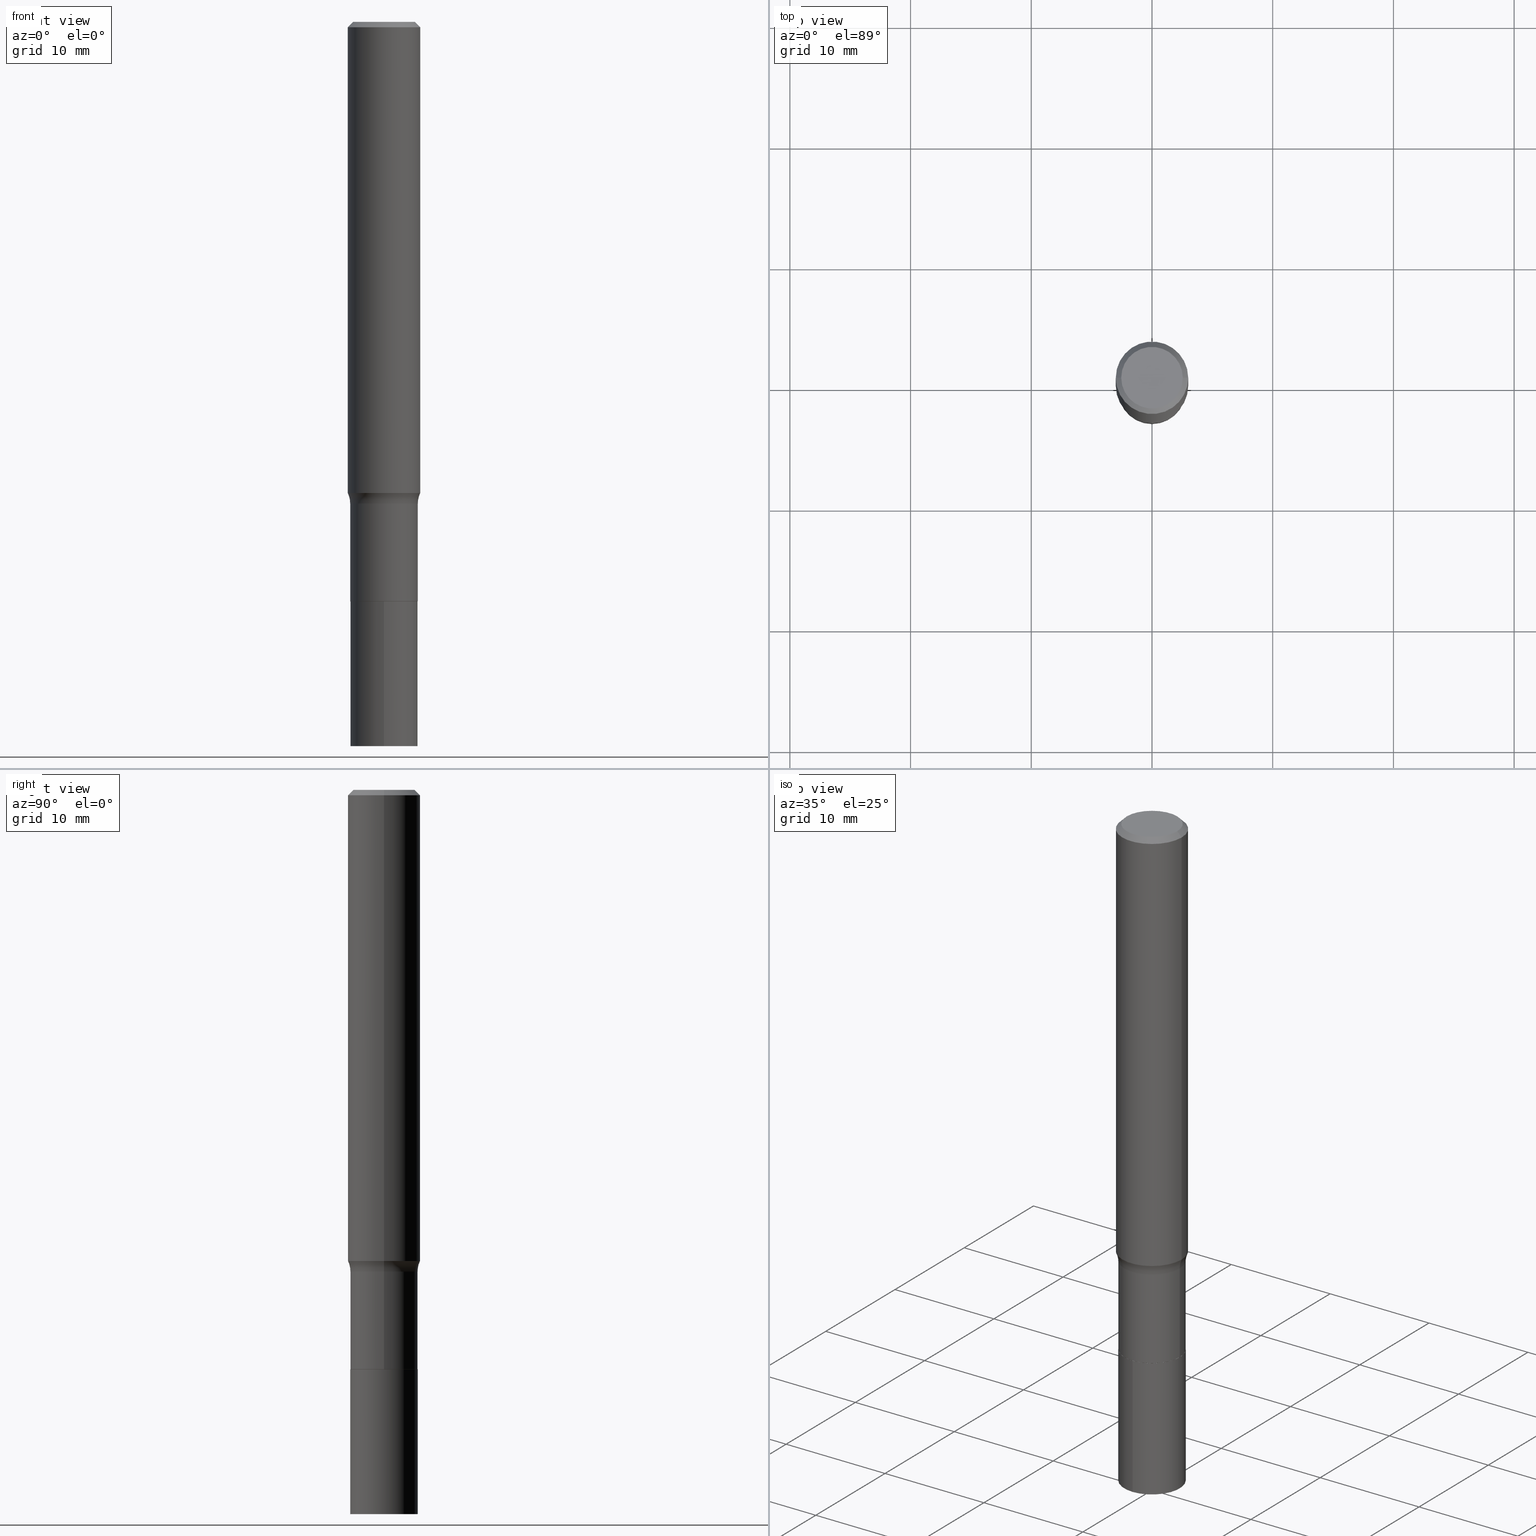
[diagram: canonical four-view strip — front | top / right | iso, engineering-drawing reading convention]
A machine part, canonical four-view strip (front | top / right | iso — engineering-drawing reading convention). The complete STEP part file that produces these views, byte-faithful:
ISO-10303-21;
HEADER;
FILE_DESCRIPTION (( 'STEP AP203' ),
    '1' );
FILE_NAME ('67101.STEP',
    '2024-04-19T15:52:13',
    ( '' ),
    ( '' ),
    'SwSTEP 2.0',
    'SolidWorks 2023',
    '' );
FILE_SCHEMA (( 'CONFIG_CONTROL_DESIGN' ));
ENDSEC;

DATA;
#1 = DIRECTION ( 'NONE',  ( -2.445468806185136877E-29, 3.491481338843145188E-15, 1.000000000000000000 ) ) ;
#2 = CARTESIAN_POINT ( 'NONE',  ( 4.621202403048053204E-29, -6.597852286011893278E-15, -1.889700000000000379 ) ) ;
#3 = DIRECTION ( 'NONE',  ( -1.000000000000000000, 6.982962677686266711E-15, 0.000000000000000000 ) ) ;
#4 = DIRECTION ( 'NONE',  ( 1.000000000000000000, -6.982962677686266711E-15, 4.875668750515089058E-29 ) ) ;
#5 = AXIS2_PLACEMENT_3D ( 'NONE', #174, #314, #34 ) ;
#6 = APPLICATION_PROTOCOL_DEFINITION ( 'international standard', 'config_control_design', 1994, #45 ) ;
#7 = EDGE_CURVE ( 'NONE', #340, #61, #364, .T. ) ;
#8 = DIRECTION ( 'NONE',  ( 1.000000000000000000, -6.982962677686268288E-15, 4.883557194083113462E-29 ) ) ;
#9 = EDGE_CURVE ( 'NONE', #276, #372, #254, .T. ) ;
#10 = FACE_OUTER_BOUND ( 'NONE', #199, .T. ) ;
#11 = LINE ( 'NONE', #342, #268 ) ;
#12 = EDGE_CURVE ( 'NONE', #399, #71, #354, .T. ) ;
#13 = ORIENTED_EDGE ( 'NONE', *, *, #244, .F. ) ;
#14 = DIRECTION ( 'NONE',  ( 2.478945423530015268E-29, -3.443540917434547988E-15, -1.000000000000000000 ) ) ;
#15 = EDGE_LOOP ( 'NONE', ( #278, #356, #25, #245 ) ) ;
#16 = DATE_AND_TIME ( #316, #86 ) ;
#17 = CARTESIAN_POINT ( 'NONE',  ( 3.842076041397468418E-29, -5.485466331456466239E-15, -1.571100000000000163 ) ) ;
#18 = ORIENTED_EDGE ( 'NONE', *, *, #456, .F. ) ;
#19 = APPROVAL ( #62, 'UNSPECIFIED' ) ;
#20 = DIRECTION ( 'NONE',  ( -2.445468806185136597E-29, 3.491481338843145583E-15, 1.000000000000000000 ) ) ;
#21 = VERTEX_POINT ( 'NONE', #112 ) ;
#22 = APPROVAL_DATE_TIME ( #103, #19 ) ;
#23 = AXIS2_PLACEMENT_3D ( 'NONE', #51, #160, #416 ) ;
#24 = ADVANCED_FACE ( 'NONE', ( #143 ), #154, .T. ) ;
#25 = ORIENTED_EDGE ( 'NONE', *, *, #456, .T. ) ;
#26 = COORDINATED_UNIVERSAL_TIME_OFFSET ( 5, 0, .BEHIND. ) ;
#27 = ORIENTED_EDGE ( 'NONE', *, *, #63, .F. ) ;
#28 = APPLICATION_PROTOCOL_DEFINITION ( 'international standard', 'config_control_design', 1994, #459 ) ;
#29 = ORIENTED_EDGE ( 'NONE', *, *, #401, .F. ) ;
#30 = AXIS2_PLACEMENT_3D ( 'NONE', #178, #465, #368 ) ;
#31 = DIRECTION ( 'NONE',  ( -2.445468806185136597E-29, 3.491481338843145583E-15, 1.000000000000000000 ) ) ;
#32 = CC_DESIGN_PERSON_AND_ORGANIZATION_ASSIGNMENT ( #243, #138, ( #223 ) ) ;
#33 = DIRECTION ( 'NONE',  ( -6.982962677686266711E-15, -1.000000000000000000, 2.477866660919966807E-15 ) ) ;
#34 = DIRECTION ( 'NONE',  ( 1.000000000000000000, -6.982962677686264344E-15, 0.000000000000000000 ) ) ;
#35 = APPROVAL_PERSON_ORGANIZATION ( #415, #83, #240 ) ;
#36 = DIRECTION ( 'NONE',  ( -2.445468806185136597E-29, 3.491481338843145583E-15, 1.000000000000000000 ) ) ;
#37 = AXIS2_PLACEMENT_3D ( 'NONE', #17, #97, #269 ) ;
#38 = CARTESIAN_POINT ( 'NONE',  ( 3.757561209076375326E-29, -5.364801549653391521E-15, -1.536540232929025418 ) ) ;
#39 = CARTESIAN_POINT ( 'NONE',  ( -0.1181000000000001909, -4.525650578720712535E-15, -1.536540232929025418 ) ) ;
#40 = CARTESIAN_POINT ( 'NONE',  ( 4.622425137451146006E-29, -6.599598026681314782E-15, -1.890200000000000324 ) ) ;
#41 = ADVANCED_FACE ( 'NONE', ( #179 ), #360, .T. ) ;
#42 = DIRECTION ( 'NONE',  ( 0.7071067811866078578, -2.468850131082888544E-15, 0.7071067811864871766 ) ) ;
#43 = CYLINDRICAL_SURFACE ( 'NONE', #218, 0.1181000000000001077 ) ;
#44 = VECTOR ( 'NONE', #128, 39.37007874015748143 ) ;
#45 = APPLICATION_CONTEXT ( 'configuration controlled 3d designs of mechanical parts and assemblies' ) ;
#46 = AXIS2_PLACEMENT_3D ( 'NONE', #365, #293, #4 ) ;
#47 = CC_DESIGN_PERSON_AND_ORGANIZATION_ASSIGNMENT ( #200, #282, ( #197 ) ) ;
#48 = LINE ( 'NONE', #231, #44 ) ;
#49 = DIRECTION ( 'NONE',  ( -2.445468806185136597E-29, 3.491481338843145583E-15, 1.000000000000000000 ) ) ;
#50 = DIRECTION ( 'NONE',  ( 0.7071067811865469066, -7.319954787623254468E-15, -0.7071067811865481278 ) ) ;
#51 = CARTESIAN_POINT ( 'NONE',  ( 4.332147990156997620E-31, -6.185159191760672860E-17, -0.01771500000000011607 ) ) ;
#52 = ADVANCED_FACE ( 'NONE', ( #104 ), #140, .T. ) ;
#53 = EDGE_LOOP ( 'NONE', ( #273, #343, #172, #232 ) ) ;
#54 = LOCAL_TIME ( 11, 52, 13.00000000000000000, #70 ) ;
#55 = CALENDAR_DATE ( 2024, 19, 4 ) ;
#56 = VECTOR ( 'NONE', #1, 39.37007874015748143 ) ;
#57 = DIRECTION ( 'NONE',  ( -2.478945423530014988E-29, 3.443540917434548382E-15, 1.000000000000000000 ) ) ;
#58 = ORIENTED_EDGE ( 'NONE', *, *, #244, .T. ) ;
#59 = COORDINATED_UNIVERSAL_TIME_OFFSET ( 5, 0, .BEHIND. ) ;
#60 = CARTESIAN_POINT ( 'NONE',  ( 0.1181000000000001909, -6.189489441888142939E-15, -1.536540232929025418 ) ) ;
#61 = VERTEX_POINT ( 'NONE', #284 ) ;
#62 = APPROVAL_STATUS ( 'not_yet_approved' ) ;
#63 = EDGE_CURVE ( 'NONE', #417, #168, #468, .T. ) ;
#64 = PLANE ( 'NONE',  #290 ) ;
#65 = ORIENTED_EDGE ( 'NONE', *, *, #115, .T. ) ;
#66 = SHAPE_DEFINITION_REPRESENTATION ( #344, #108 ) ;
#67 = AXIS2_PLACEMENT_3D ( 'NONE', #327, #227, #3 ) ;
#68 = ADVANCED_FACE ( 'NONE', ( #426 ), #87, .T. ) ;
#69 = ORIENTED_EDGE ( 'NONE', *, *, #124, .T. ) ;
#70 = COORDINATED_UNIVERSAL_TIME_OFFSET ( 5, 0, .BEHIND. ) ;
#71 = VERTEX_POINT ( 'NONE', #321 ) ;
#72 = ADVANCED_FACE ( 'NONE', ( #464 ), #109, .F. ) ;
#73 = DIRECTION ( 'NONE',  ( -6.982962677686266711E-15, -1.000000000000000000, 2.477866660919966807E-15 ) ) ;
#74 = CIRCLE ( 'NONE', #412, 0.1003849999999999465 ) ;
#75 = AXIS2_PLACEMENT_3D ( 'NONE', #81, #258, #261 ) ;
#76 = EDGE_LOOP ( 'NONE', ( #170, #381, #206, #387 ) ) ;
#77 = ORIENTED_EDGE ( 'NONE', *, *, #211, .F. ) ;
#78 = FACE_OUTER_BOUND ( 'NONE', #303, .T. ) ;
#79 = CC_DESIGN_SECURITY_CLASSIFICATION ( #142, ( #197 ) ) ;
#80 = CARTESIAN_POINT ( 'NONE',  ( 0.1003849999999999465, -7.803837484803597373E-16, -3.278471329826883745E-17 ) ) ;
#81 = CARTESIAN_POINT ( 'NONE',  ( 4.332147990156997620E-31, -6.185159191760672860E-17, -0.01771500000000011607 ) ) ;
#82 = DIRECTION ( 'NONE',  ( -2.445468806185136597E-29, 3.491481338843145583E-15, 1.000000000000000000 ) ) ;
#83 = APPROVAL ( #204, 'UNSPECIFIED' ) ;
#84 = LINE ( 'NONE', #274, #289 ) ;
#85 = CARTESIAN_POINT ( 'NONE',  ( 0.000000000000000000, 0.000000000000000000, 0.000000000000000000 ) ) ;
#86 = LOCAL_TIME ( 11, 52, 13.00000000000000000, #311 ) ;
#87 = CONICAL_SURFACE ( 'NONE', #123, 0.1097500000000000003, 0.7853981633975336552 ) ;
#88 = CARTESIAN_POINT ( 'NONE',  ( 3.757561209076375326E-29, -5.364801549653391521E-15, -1.536540232929025418 ) ) ;
#89 = ORIENTED_EDGE ( 'NONE', *, *, #177, .T. ) ;
#90 = EDGE_CURVE ( 'NONE', #346, #396, #359, .T. ) ;
#91 = LINE ( 'NONE', #451, #248 ) ;
#92 = ORIENTED_EDGE ( 'NONE', *, *, #9, .T. ) ;
#93 = CARTESIAN_POINT ( 'NONE',  ( 7.833733661755681459E-16, 0.1102499999999933950, -1.890200000000000546 ) ) ;
#94 = EDGE_LOOP ( 'NONE', ( #13, #102 ) ) ;
#95 = DIRECTION ( 'NONE',  ( 1.000000000000000000, 0.000000000000000000, 0.000000000000000000 ) ) ;
#96 = CLOSED_SHELL ( 'NONE', ( #41, #285, #371, #334 ) ) ;
#97 = DIRECTION ( 'NONE',  ( -2.445468806185136597E-29, 3.491481338843145583E-15, 1.000000000000000000 ) ) ;
#98 = ADVANCED_FACE ( 'NONE', ( #406 ), #43, .T. ) ;
#99 = ORIENTED_EDGE ( 'NONE', *, *, #257, .T. ) ;
#100 = PERSON_AND_ORGANIZATION ( #410, #259 ) ;
#101 = FACE_OUTER_BOUND ( 'NONE', #407, .T. ) ;
#102 = ORIENTED_EDGE ( 'NONE', *, *, #149, .F. ) ;
#103 = DATE_AND_TIME ( #347, #146 ) ;
#104 = FACE_OUTER_BOUND ( 'NONE', #145, .T. ) ;
#105 = AXIS2_PLACEMENT_3D ( 'NONE', #38, #226, #297 ) ;
#106 = DIRECTION ( 'NONE',  ( -2.478945423530014988E-29, 3.443540917434548382E-15, 1.000000000000000000 ) ) ;
#107 = ORIENTED_EDGE ( 'NONE', *, *, #305, .T. ) ;
#108 = ADVANCED_BREP_SHAPE_REPRESENTATION ( '67101', ( #448, #454, #395 ), #116 ) ;
#109 = PLANE ( 'NONE',  #30 ) ;
#110 = AXIS2_PLACEMENT_3D ( 'NONE', #366, #147, #221 ) ;
#111 = VECTOR ( 'NONE', #429, 39.37007874015748143 ) ;
#112 = CARTESIAN_POINT ( 'NONE',  ( 0.1097500000000000003, -7.365978180557383248E-15, -1.890200000000000324 ) ) ;
#113 = DIRECTION ( 'NONE',  ( 1.000000000000000000, -6.982962677686266711E-15, 4.876176775795935793E-29 ) ) ;
#114 = DIRECTION ( 'NONE',  ( 1.000000000000000000, -6.982962677686269866E-15, 0.000000000000000000 ) ) ;
#115 = EDGE_CURVE ( 'NONE', #372, #276, #452, .T. ) ;
#116 =( GEOMETRIC_REPRESENTATION_CONTEXT ( 3 ) GLOBAL_UNCERTAINTY_ASSIGNED_CONTEXT ( ( #151 ) ) GLOBAL_UNIT_ASSIGNED_CONTEXT ( ( #331, #435, #263 ) ) REPRESENTATION_CONTEXT ( 'NONE', 'WORKASPACE' ) );
#117 = CARTESIAN_POINT ( 'NONE',  ( 0.000000000000000000, 0.000000000000000000, 0.000000000000000000 ) ) ;
#118 = TOROIDAL_SURFACE ( 'NONE', #37, 0.1902499999999999747, 0.08000000000000000167 ) ;
#119 = APPROVAL ( #280, 'UNSPECIFIED' ) ;
#120 = CARTESIAN_POINT ( 'NONE',  ( 0.1902499999999999747, -6.813974980886278576E-15, -1.571100000000000163 ) ) ;
#121 = DIRECTION ( 'NONE',  ( 1.000000000000000000, -6.982962677686265922E-15, 4.876176775795935793E-29 ) ) ;
#122 = LINE ( 'NONE', #333, #349 ) ;
#123 = AXIS2_PLACEMENT_3D ( 'NONE', #358, #31, #320 ) ;
#124 = EDGE_CURVE ( 'NONE', #377, #442, #148, .T. ) ;
#125 = DIRECTION ( 'NONE',  ( 1.000000000000000000, -6.982962677686261977E-15, 0.000000000000000000 ) ) ;
#126 = CARTESIAN_POINT ( 'NONE',  ( 1.689407089296579624E-29, -1.410079384504042696E-14, -2.362200000000000077 ) ) ;
#127 = ORIENTED_EDGE ( 'NONE', *, *, #185, .F. ) ;
#128 = DIRECTION ( 'NONE',  ( -2.445468806185136877E-29, 3.491481338843145188E-15, 1.000000000000000000 ) ) ;
#129 = CARTESIAN_POINT ( 'NONE',  ( -0.1102499999999999869, -5.258285942558669989E-15, -1.889700000000000379 ) ) ;
#130 = ORIENTED_EDGE ( 'NONE', *, *, #266, .T. ) ;
#131 = ADVANCED_FACE ( 'NONE', ( #229 ), #265, .F. ) ;
#132 = CARTESIAN_POINT ( 'NONE',  ( 4.622425137451146006E-29, -6.599598026681314782E-15, -1.890200000000000324 ) ) ;
#133 = ORIENTED_EDGE ( 'NONE', *, *, #374, .T. ) ;
#134 = PERSON_AND_ORGANIZATION_ROLE ( 'classification_officer' ) ;
#135 = AXIS2_PLACEMENT_3D ( 'NONE', #328, #256, #121 ) ;
#136 = CARTESIAN_POINT ( 'NONE',  ( -0.1097500000000000003, -5.817128147010494315E-15, -1.890200000000000324 ) ) ;
#137 = ORIENTED_EDGE ( 'NONE', *, *, #447, .F. ) ;
#138 = PERSON_AND_ORGANIZATION_ROLE ( 'creator' ) ;
#139 = EDGE_LOOP ( 'NONE', ( #99, #130, #194, #249 ) ) ;
#140 = CYLINDRICAL_SURFACE ( 'NONE', #210, 0.1102499999999999730 ) ;
#141 = APPROVAL_ROLE ( '' ) ;
#142 = SECURITY_CLASSIFICATION ( '', '', #382 ) ;
#143 = FACE_OUTER_BOUND ( 'NONE', #15, .T. ) ;
#144 = EDGE_LOOP ( 'NONE', ( #235, #133, #237, #77 ) ) ;
#145 = EDGE_LOOP ( 'NONE', ( #89, #214, #391, #137 ) ) ;
#146 = LOCAL_TIME ( 11, 52, 13.00000000000000000, #59 ) ;
#147 = DIRECTION ( 'NONE',  ( -2.445468806185136597E-29, 3.491481338843145583E-15, 1.000000000000000000 ) ) ;
#148 = LINE ( 'NONE', #190, #338 ) ;
#149 = EDGE_CURVE ( 'NONE', #300, #21, #390, .T. ) ;
#150 = DIRECTION ( 'NONE',  ( -6.982962677686266711E-15, -1.000000000000000000, 2.477866660919966807E-15 ) ) ;
#151 = UNCERTAINTY_MEASURE_WITH_UNIT (LENGTH_MEASURE( 1.000000000000000082E-05 ), #331, 'distance_accuracy_value', 'NONE');
#152 =( LENGTH_UNIT ( ) NAMED_UNIT ( * ) SI_UNIT ( $, .METRE. ) );
#153 = DIRECTION ( 'NONE',  ( -2.445468806185136597E-29, 3.491481338843145583E-15, 1.000000000000000000 ) ) ;
#154 = CONICAL_SURFACE ( 'NONE', #5, 0.1097500000000000003, 0.7853981633975336552 ) ;
#155 = CARTESIAN_POINT ( 'NONE',  ( 3.842076041397468418E-29, -5.485466331456466239E-15, -1.571100000000000163 ) ) ;
#156 = DIRECTION ( 'NONE',  ( -2.445468806185136597E-29, 3.491481338843145583E-15, 1.000000000000000000 ) ) ;
#157 = DIRECTION ( 'NONE',  ( 7.105427357601001859E-15, 1.000000000000000000, -3.491481338843145583E-15 ) ) ;
#158 = ADVANCED_FACE ( 'NONE', ( #438 ), #319, .F. ) ;
#159 = DIRECTION ( 'NONE',  ( -0.7071067811866078578, 7.493145998870571886E-15, 0.7071067811864871766 ) ) ;
#160 = DIRECTION ( 'NONE',  ( -2.445468806185136597E-29, 3.491481338843145583E-15, 1.000000000000000000 ) ) ;
#161 = AXIS2_PLACEMENT_3D ( 'NONE', #132, #241, #275 ) ;
#162 = ORIENTED_EDGE ( 'NONE', *, *, #380, .T. ) ;
#163 = PLANE ( 'NONE',  #169 ) ;
#164 = ORIENTED_EDGE ( 'NONE', *, *, #115, .F. ) ;
#165 = DIRECTION ( 'NONE',  ( -2.478945423530014988E-29, 3.443540917434547988E-15, 1.000000000000000000 ) ) ;
#166 = ORIENTED_EDGE ( 'NONE', *, *, #7, .F. ) ;
#167 = CARTESIAN_POINT ( 'NONE',  ( 7.833733661755623280E-16, 0.1102499999999917574, -2.362200000000000966 ) ) ;
#168 = VERTEX_POINT ( 'NONE', #370 ) ;
#169 = AXIS2_PLACEMENT_3D ( 'NONE', #126, #234, #281 ) ;
#170 = ORIENTED_EDGE ( 'NONE', *, *, #183, .F. ) ;
#171 = APPROVAL_DATE_TIME ( #313, #83 ) ;
#172 = ORIENTED_EDGE ( 'NONE', *, *, #233, .T. ) ;
#173 = PERSON_AND_ORGANIZATION ( #410, #259 ) ;
#174 = CARTESIAN_POINT ( 'NONE',  ( 4.622425137451146006E-29, -6.599598026681314782E-15, -1.890200000000000324 ) ) ;
#175 = VECTOR ( 'NONE', #296, 39.37007874015748143 ) ;
#176 = VERTEX_POINT ( 'NONE', #80 ) ;
#177 = EDGE_CURVE ( 'NONE', #396, #346, #398, .T. ) ;
#178 = CARTESIAN_POINT ( 'NONE',  ( 4.008699684532606202E-46, -5.723360734012321624E-32, -1.639235664913700718E-17 ) ) ;
#179 = FACE_OUTER_BOUND ( 'NONE', #361, .T. ) ;
#180 = CIRCLE ( 'NONE', #222, 0.08000000000000000167 ) ;
#181 = CIRCLE ( 'NONE', #46, 0.1003849999999999465 ) ;
#182 = DIRECTION ( 'NONE',  ( 1.000000000000000000, -6.982962677686271444E-15, 0.000000000000000000 ) ) ;
#183 = EDGE_CURVE ( 'NONE', #176, #377, #181, .T. ) ;
#184 = DIRECTION ( 'NONE',  ( 1.000000000000000000, -6.982962677686264344E-15, 0.000000000000000000 ) ) ;
#185 = EDGE_CURVE ( 'NONE', #417, #372, #192, .T. ) ;
#186 = FACE_OUTER_BOUND ( 'NONE', #286, .T. ) ;
#187 = DIRECTION ( 'NONE',  ( -0.7071067811865469066, 2.468850131082250355E-15, -0.7071067811865481278 ) ) ;
#188 = PRODUCT ( '67101', '67101', '', ( #341 ) ) ;
#189 = LOCAL_TIME ( 11, 52, 13.00000000000000000, #352 ) ;
#190 = CARTESIAN_POINT ( 'NONE',  ( -0.1180999999999999966, 7.628363003171413738E-16, -0.01771500000000011607 ) ) ;
#191 = AXIS2_PLACEMENT_3D ( 'NONE', #120, #225, #182 ) ;
#192 = LINE ( 'NONE', #400, #175 ) ;
#193 = DIRECTION ( 'NONE',  ( 1.000000000000000000, -6.982962677686266711E-15, 4.875668750515089058E-29 ) ) ;
#194 = ORIENTED_EDGE ( 'NONE', *, *, #315, .F. ) ;
#195 = DIRECTION ( 'NONE',  ( 2.445468806185136597E-29, -3.491481338843145583E-15, -1.000000000000000000 ) ) ;
#196 = CARTESIAN_POINT ( 'NONE',  ( 4.622425137451146006E-29, -6.599598026681314782E-15, -1.890200000000000324 ) ) ;
#197 = PRODUCT_DEFINITION_FORMATION_WITH_SPECIFIED_SOURCE ( 'ANY', '', #188, .NOT_KNOWN. ) ;
#198 = ADVANCED_FACE ( 'NONE', ( #467 ), #224, .T. ) ;
#199 = EDGE_LOOP ( 'NONE', ( #127, #312, #162, #164 ) ) ;
#200 = PERSON_AND_ORGANIZATION ( #410, #259 ) ;
#201 = DIRECTION ( 'NONE',  ( 1.000000000000000000, -6.982962677686269077E-15, 0.000000000000000000 ) ) ;
#202 = EDGE_LOOP ( 'NONE', ( #242, #27 ) ) ;
#203 = CC_DESIGN_PERSON_AND_ORGANIZATION_ASSIGNMENT ( #450, #455, ( #188 ) ) ;
#204 = APPROVAL_STATUS ( 'not_yet_approved' ) ;
#205 = CARTESIAN_POINT ( 'NONE',  ( 8.017399369065212404E-46, -1.144672146802464325E-31, -3.278471329827401435E-17 ) ) ;
#206 = ORIENTED_EDGE ( 'NONE', *, *, #315, .T. ) ;
#207 = DATE_TIME_ROLE ( 'classification_date' ) ;
#208 = ORIENTED_EDGE ( 'NONE', *, *, #7, .T. ) ;
#209 = CIRCLE ( 'NONE', #466, 0.1102499999999999730 ) ;
#210 = AXIS2_PLACEMENT_3D ( 'NONE', #250, #419, #423 ) ;
#211 = EDGE_CURVE ( 'NONE', #442, #71, #369, .T. ) ;
#212 = DIRECTION ( 'NONE',  ( -2.478945423530014988E-29, 3.443540917434548382E-15, 1.000000000000000000 ) ) ;
#213 = PERSON_AND_ORGANIZATION ( #410, #259 ) ;
#214 = ORIENTED_EDGE ( 'NONE', *, *, #264, .T. ) ;
#215 = DIRECTION ( 'NONE',  ( -6.982962677686266711E-15, -1.000000000000000000, 2.477866660919966807E-15 ) ) ;
#216 = ADVANCED_FACE ( 'NONE', ( #78 ), #404, .T. ) ;
#217 = AXIS2_PLACEMENT_3D ( 'NONE', #373, #195, #336 ) ;
#218 = AXIS2_PLACEMENT_3D ( 'NONE', #85, #330, #113 ) ;
#219 = ORIENTED_EDGE ( 'NONE', *, *, #185, .T. ) ;
#220 = ORIENTED_EDGE ( 'NONE', *, *, #9, .F. ) ;
#221 = DIRECTION ( 'NONE',  ( 1.000000000000000000, -6.982962677686264344E-15, 0.000000000000000000 ) ) ;
#222 = AXIS2_PLACEMENT_3D ( 'NONE', #386, #157, #439 ) ;
#223 = PRODUCT_DEFINITION ( 'UNKNOWN', '', #197, #262 ) ;
#224 = CYLINDRICAL_SURFACE ( 'NONE', #350, 0.1181000000000001077 ) ;
#225 = DIRECTION ( 'NONE',  ( -6.982962677686266711E-15, -1.000000000000000000, 3.491481338843145583E-15 ) ) ;
#226 = DIRECTION ( 'NONE',  ( -2.445468806185136597E-29, 3.491481338843145583E-15, 1.000000000000000000 ) ) ;
#227 = DIRECTION ( 'NONE',  ( 2.445468806185136597E-29, -3.491481338843145583E-15, -1.000000000000000000 ) ) ;
#228 = CONICAL_SURFACE ( 'NONE', #217, 0.1180999999999999966, 0.7853981633974473908 ) ;
#229 = FACE_OUTER_BOUND ( 'NONE', #94, .T. ) ;
#230 = AXIS2_PLACEMENT_3D ( 'NONE', #277, #57, #307 ) ;
#231 = CARTESIAN_POINT ( 'NONE',  ( 0.1102499999999999730, -7.698716352149106840E-16, 5.375984895315018203E-30 ) ) ;
#232 = ORIENTED_EDGE ( 'NONE', *, *, #425, .T. ) ;
#233 = EDGE_CURVE ( 'NONE', #399, #61, #260, .T. ) ;
#234 = DIRECTION ( 'NONE',  ( -2.478945423530015268E-29, 3.443540917434547988E-15, 1.000000000000000000 ) ) ;
#235 = ORIENTED_EDGE ( 'NONE', *, *, #266, .F. ) ;
#236 = DIRECTION ( 'NONE',  ( -2.445468806185136597E-29, 3.491481338843145583E-15, 1.000000000000000000 ) ) ;
#237 = ORIENTED_EDGE ( 'NONE', *, *, #12, .T. ) ;
#238 = DATE_AND_TIME ( #55, #54 ) ;
#239 = ORIENTED_EDGE ( 'NONE', *, *, #447, .T. ) ;
#240 = APPROVAL_ROLE ( '' ) ;
#241 = DIRECTION ( 'NONE',  ( -2.478945423530014988E-29, 3.443540917434548382E-15, 1.000000000000000000 ) ) ;
#242 = ORIENTED_EDGE ( 'NONE', *, *, #305, .F. ) ;
#243 = PERSON_AND_ORGANIZATION ( #410, #259 ) ;
#244 = EDGE_CURVE ( 'NONE', #21, #300, #310, .T. ) ;
#245 = ORIENTED_EDGE ( 'NONE', *, *, #90, .F. ) ;
#246 = CC_DESIGN_APPROVAL ( #119, ( #223 ) ) ;
#247 = CARTESIAN_POINT ( 'NONE',  ( 0.000000000000000000, 0.000000000000000000, 0.000000000000000000 ) ) ;
#248 = VECTOR ( 'NONE', #378, 39.37007874015748143 ) ;
#249 = ORIENTED_EDGE ( 'NONE', *, *, #12, .F. ) ;
#250 = CARTESIAN_POINT ( 'NONE',  ( 0.000000000000000000, 0.000000000000000000, 0.000000000000000000 ) ) ;
#251 = CC_DESIGN_DATE_AND_TIME_ASSIGNMENT ( #238, #388, ( #223 ) ) ;
#252 = CARTESIAN_POINT ( 'NONE',  ( 0.1181000000000001077, -8.246878922347488542E-16, 5.758764772215005345E-30 ) ) ;
#253 = CLOSED_SHELL ( 'NONE', ( #68, #428, #98, #294, #52, #216, #158, #198, #463, #72, #131, #24 ) ) ;
#254 = CIRCLE ( 'NONE', #308, 0.1102500000000000008 ) ;
#255 = ORIENTED_EDGE ( 'NONE', *, *, #233, .F. ) ;
#256 = DIRECTION ( 'NONE',  ( -2.438088387897960049E-29, 3.491481338843145188E-15, 1.000000000000000000 ) ) ;
#257 = EDGE_CURVE ( 'NONE', #399, #461, #270, .T. ) ;
#258 = DIRECTION ( 'NONE',  ( -2.445468806185136597E-29, 3.491481338843145583E-15, 1.000000000000000000 ) ) ;
#259 = ORGANIZATION ( 'UNSPECIFIED', 'UNSPECIFIED', '' ) ;
#260 = CIRCLE ( 'NONE', #191, 0.08000000000000000167 ) ;
#261 = DIRECTION ( 'NONE',  ( 1.000000000000000000, -6.982962677686266711E-15, 0.000000000000000000 ) ) ;
#262 = DESIGN_CONTEXT ( 'detailed design', #459, 'design' ) ;
#263 =( NAMED_UNIT ( * ) SI_UNIT ( $, .STERADIAN. ) SOLID_ANGLE_UNIT ( ) );
#264 = EDGE_CURVE ( 'NONE', #346, #340, #291, .T. ) ;
#265 = PLANE ( 'NONE',  #135 ) ;
#266 = EDGE_CURVE ( 'NONE', #461, #442, #91, .T. ) ;
#267 = DIRECTION ( 'NONE',  ( -2.445468806185136597E-29, 3.491481338843145583E-15, 1.000000000000000000 ) ) ;
#268 = VECTOR ( 'NONE', #165, 39.37007874015748143 ) ;
#269 = DIRECTION ( 'NONE',  ( 1.000000000000000000, -6.982962677686268288E-15, 4.883557194083113462E-29 ) ) ;
#270 = CIRCLE ( 'NONE', #105, 0.1181000000000001909 ) ;
#271 = ORIENTED_EDGE ( 'NONE', *, *, #90, .T. ) ;
#272 = FACE_OUTER_BOUND ( 'NONE', #76, .T. ) ;
#273 = ORIENTED_EDGE ( 'NONE', *, *, #420, .F. ) ;
#274 = CARTESIAN_POINT ( 'NONE',  ( 0.1097500000000000003, -7.365978180557383248E-15, -1.890200000000000324 ) ) ;
#275 = DIRECTION ( 'NONE',  ( -6.982962677686266711E-15, -1.000000000000000000, 2.477866660919966807E-15 ) ) ;
#276 = VERTEX_POINT ( 'NONE', #337 ) ;
#277 = CARTESIAN_POINT ( 'NONE',  ( 5.792487377357313463E-29, -8.224949339710422363E-15, -2.362200000000000522 ) ) ;
#278 = ORIENTED_EDGE ( 'NONE', *, *, #424, .F. ) ;
#279 = AXIS2_PLACEMENT_3D ( 'NONE', #433, #36, #8 ) ;
#280 = APPROVAL_STATUS ( 'not_yet_approved' ) ;
#281 = DIRECTION ( 'NONE',  ( -6.982962677686265922E-15, -1.000000000000000000, 3.443540917434547988E-15 ) ) ;
#282 = PERSON_AND_ORGANIZATION_ROLE ( 'creator' ) ;
#283 = DIRECTION ( 'NONE',  ( -2.478945423530014988E-29, 3.443540917434548382E-15, 1.000000000000000000 ) ) ;
#284 = CARTESIAN_POINT ( 'NONE',  ( 0.1102499999999999730, -6.255337966671376923E-15, -1.571100000000000163 ) ) ;
#285 = ADVANCED_FACE ( 'NONE', ( #383 ), #163, .F. ) ;
#286 = EDGE_LOOP ( 'NONE', ( #351, #29, #69, #309 ) ) ;
#287 = CARTESIAN_POINT ( 'NONE',  ( 4.622425137451146006E-29, -6.599598026681314782E-15, -1.890200000000000324 ) ) ;
#288 = ORIENTED_EDGE ( 'NONE', *, *, #183, .T. ) ;
#289 = VECTOR ( 'NONE', #42, 39.37007874015748143 ) ;
#290 = AXIS2_PLACEMENT_3D ( 'NONE', #196, #14, #299 ) ;
#291 = LINE ( 'NONE', #325, #56 ) ;
#292 = DIRECTION ( 'NONE',  ( -2.478945423530014988E-29, 3.443540917434548382E-15, 1.000000000000000000 ) ) ;
#293 = DIRECTION ( 'NONE',  ( -2.445468806185136597E-29, 3.491481338843145583E-15, 1.000000000000000000 ) ) ;
#294 = ADVANCED_FACE ( 'NONE', ( #375 ), #118, .F. ) ;
#295 = AXIS2_PLACEMENT_3D ( 'NONE', #2, #153, #432 ) ;
#296 = DIRECTION ( 'NONE',  ( -2.478945423530014988E-29, 3.443540917434547988E-15, 1.000000000000000000 ) ) ;
#297 = DIRECTION ( 'NONE',  ( 1.000000000000000000, -6.982962677686269077E-15, 0.000000000000000000 ) ) ;
#298 = ORIENTED_EDGE ( 'NONE', *, *, #380, .F. ) ;
#299 = DIRECTION ( 'NONE',  ( 6.982962677686265922E-15, 1.000000000000000000, -3.443540917434547988E-15 ) ) ;
#300 = VERTEX_POINT ( 'NONE', #136 ) ;
#301 = APPROVAL_ROLE ( '' ) ;
#302 = CARTESIAN_POINT ( 'NONE',  ( 0.1102499999999999869, -7.367723921226805540E-15, -1.889700000000000379 ) ) ;
#303 = EDGE_LOOP ( 'NONE', ( #453, #271, #239, #166 ) ) ;
#304 = DIRECTION ( 'NONE',  ( 0.000000000000000000, 0.000000000000000000, 1.000000000000000000 ) ) ;
#305 = EDGE_CURVE ( 'NONE', #168, #417, #430, .T. ) ;
#306 = LOCAL_TIME ( 11, 52, 13.00000000000000000, #26 ) ;
#307 = DIRECTION ( 'NONE',  ( -6.982962677686266711E-15, -1.000000000000000000, 2.477866660919966807E-15 ) ) ;
#308 = AXIS2_PLACEMENT_3D ( 'NONE', #287, #212, #73 ) ;
#309 = ORIENTED_EDGE ( 'NONE', *, *, #211, .T. ) ;
#310 = CIRCLE ( 'NONE', #110, 0.1097500000000000003 ) ;
#311 = COORDINATED_UNIVERSAL_TIME_OFFSET ( 5, 0, .BEHIND. ) ;
#312 = ORIENTED_EDGE ( 'NONE', *, *, #63, .T. ) ;
#313 = DATE_AND_TIME ( #418, #306 ) ;
#314 = DIRECTION ( 'NONE',  ( -2.445468806185136597E-29, 3.491481338843145583E-15, 1.000000000000000000 ) ) ;
#315 = EDGE_CURVE ( 'NONE', #71, #442, #434, .T. ) ;
#316 = CALENDAR_DATE ( 2024, 19, 4 ) ;
#317 = DIRECTION ( 'NONE',  ( 1.000000000000000000, -6.982962677686261977E-15, 0.000000000000000000 ) ) ;
#318 = CC_DESIGN_APPROVAL ( #83, ( #197 ) ) ;
#319 = TOROIDAL_SURFACE ( 'NONE', #279, 0.1902499999999999747, 0.08000000000000000167 ) ;
#320 = DIRECTION ( 'NONE',  ( 1.000000000000000000, -6.982962677686264344E-15, 0.000000000000000000 ) ) ;
#321 = CARTESIAN_POINT ( 'NONE',  ( 0.1180999999999999966, -8.865394841523547570E-16, -0.01771500000000011607 ) ) ;
#322 = CARTESIAN_POINT ( 'NONE',  ( 3.842076041397468418E-29, -5.485466331456466239E-15, -1.571100000000000163 ) ) ;
#323 = CC_DESIGN_APPROVAL ( #19, ( #142 ) ) ;
#324 = AXIS2_PLACEMENT_3D ( 'NONE', #322, #422, #317 ) ;
#325 = CARTESIAN_POINT ( 'NONE',  ( -0.1102499999999999730, 7.833733661755102632E-16, -5.423125937006032068E-30 ) ) ;
#326 = CARTESIAN_POINT ( 'NONE',  ( 4.621202403048053204E-29, -6.597852286011893278E-15, -1.889700000000000379 ) ) ;
#327 = CARTESIAN_POINT ( 'NONE',  ( 4.332147990156997620E-31, -6.185159191760672860E-17, -0.01771500000000011607 ) ) ;
#328 = CARTESIAN_POINT ( 'NONE',  ( 4.622425137451146006E-29, -6.599598026681314782E-15, -1.890200000000000324 ) ) ;
#329 = AXIS2_PLACEMENT_3D ( 'NONE', #402, #82, #436 ) ;
#330 = DIRECTION ( 'NONE',  ( -2.445468806185136597E-29, 3.491481338843145583E-15, 1.000000000000000000 ) ) ;
#331 =( CONVERSION_BASED_UNIT ( 'INCH', #437 ) LENGTH_UNIT ( ) NAMED_UNIT ( #376 ) );
#332 = LINE ( 'NONE', #449, #357 ) ;
#333 = CARTESIAN_POINT ( 'NONE',  ( -0.1097500000000000003, -5.819777374184605516E-15, -1.890200000000000324 ) ) ;
#334 = ADVANCED_FACE ( 'NONE', ( #101 ), #64, .F. ) ;
#335 = EDGE_LOOP ( 'NONE', ( #58, #408, #393, #18 ) ) ;
#336 = DIRECTION ( 'NONE',  ( -1.000000000000000000, 6.982962677686266711E-15, 0.000000000000000000 ) ) ;
#337 = CARTESIAN_POINT ( 'NONE',  ( -7.698716352148647328E-16, -0.1102500000000066066, -1.890199999999999880 ) ) ;
#338 = VECTOR ( 'NONE', #187, 39.37007874015748143 ) ;
#339 = CC_DESIGN_DATE_AND_TIME_ASSIGNMENT ( #16, #207, ( #142 ) ) ;
#340 = VERTEX_POINT ( 'NONE', #444 ) ;
#341 = MECHANICAL_CONTEXT ( 'NONE', #45, 'mechanical' ) ;
#342 = CARTESIAN_POINT ( 'NONE',  ( -7.698716352148647328E-16, -0.1102500000000066066, -1.890199999999999880 ) ) ;
#343 = ORIENTED_EDGE ( 'NONE', *, *, #257, .F. ) ;
#344 = PRODUCT_DEFINITION_SHAPE ( 'NONE', 'NONE',  #223 ) ;
#345 = CYLINDRICAL_SURFACE ( 'NONE', #161, 0.1102500000000000008 ) ;
#346 = VERTEX_POINT ( 'NONE', #129 ) ;
#347 = CALENDAR_DATE ( 2024, 19, 4 ) ;
#348 = CC_DESIGN_PERSON_AND_ORGANIZATION_ASSIGNMENT ( #213, #355, ( #197 ) ) ;
#349 = VECTOR ( 'NONE', #159, 39.37007874015748143 ) ;
#350 = AXIS2_PLACEMENT_3D ( 'NONE', #117, #156, #405 ) ;
#351 = ORIENTED_EDGE ( 'NONE', *, *, #397, .F. ) ;
#352 = COORDINATED_UNIVERSAL_TIME_OFFSET ( 5, 0, .BEHIND. ) ;
#353 = CC_DESIGN_PERSON_AND_ORGANIZATION_ASSIGNMENT ( #173, #134, ( #142 ) ) ;
#354 = LINE ( 'NONE', #252, #111 ) ;
#355 = PERSON_AND_ORGANIZATION_ROLE ( 'design_supplier' ) ;
#356 = ORIENTED_EDGE ( 'NONE', *, *, #149, .T. ) ;
#357 = VECTOR ( 'NONE', #50, 39.37007874015748143 ) ;
#358 = CARTESIAN_POINT ( 'NONE',  ( 4.622425137451146006E-29, -6.599598026681314782E-15, -1.890200000000000324 ) ) ;
#359 = CIRCLE ( 'NONE', #295, 0.1102499999999999869 ) ;
#360 = CYLINDRICAL_SURFACE ( 'NONE', #421, 0.1102500000000000008 ) ;
#361 = EDGE_LOOP ( 'NONE', ( #107, #219, #220, #298 ) ) ;
#362 = CARTESIAN_POINT ( 'NONE',  ( 4.622425137451146006E-29, -6.599598026681314782E-15, -1.890200000000000324 ) ) ;
#363 = APPROVAL_PERSON_ORGANIZATION ( #100, #19, #141 ) ;
#364 = CIRCLE ( 'NONE', #324, 0.1102499999999999730 ) ;
#365 = CARTESIAN_POINT ( 'NONE',  ( 8.017399369065212404E-46, -1.144672146802464325E-31, -3.278471329827401435E-17 ) ) ;
#366 = CARTESIAN_POINT ( 'NONE',  ( 4.622425137451146006E-29, -6.599598026681314782E-15, -1.890200000000000324 ) ) ;
#367 = DIRECTION ( 'NONE',  ( -2.445468806185136597E-29, 3.491481338843145583E-15, 1.000000000000000000 ) ) ;
#368 = DIRECTION ( 'NONE',  ( -1.000000000000000000, 6.982962677686265922E-15, -4.876176775795935793E-29 ) ) ;
#369 = CIRCLE ( 'NONE', #75, 0.1180999999999999966 ) ;
#370 = CARTESIAN_POINT ( 'NONE',  ( -7.698716352148528999E-16, -0.1102500000000082164, -2.362200000000000077 ) ) ;
#371 = ADVANCED_FACE ( 'NONE', ( #10 ), #345, .T. ) ;
#372 = VERTEX_POINT ( 'NONE', #93 ) ;
#373 = CARTESIAN_POINT ( 'NONE',  ( 4.332147990156997620E-31, -6.185159191760672860E-17, -0.01771500000000011607 ) ) ;
#374 = EDGE_CURVE ( 'NONE', #461, #399, #431, .T. ) ;
#375 = FACE_OUTER_BOUND ( 'NONE', #414, .T. ) ;
#376 = DIMENSIONAL_EXPONENTS ( 1.000000000000000000, 0.000000000000000000, 0.000000000000000000, 0.000000000000000000, 0.000000000000000000, 0.000000000000000000, 0.000000000000000000 ) ;
#377 = VERTEX_POINT ( 'NONE', #413 ) ;
#378 = DIRECTION ( 'NONE',  ( -2.445468806185136877E-29, 3.491481338843145188E-15, 1.000000000000000000 ) ) ;
#379 = AXIS2_PLACEMENT_3D ( 'NONE', #40, #267, #184 ) ;
#380 = EDGE_CURVE ( 'NONE', #168, #276, #11, .T. ) ;
#381 = ORIENTED_EDGE ( 'NONE', *, *, #397, .T. ) ;
#382 = SECURITY_CLASSIFICATION_LEVEL ( 'unclassified' ) ;
#383 = FACE_OUTER_BOUND ( 'NONE', #202, .T. ) ;
#384 = ORIENTED_EDGE ( 'NONE', *, *, #420, .T. ) ;
#385 = APPROVAL_DATE_TIME ( #411, #119 ) ;
#386 = CARTESIAN_POINT ( 'NONE',  ( -0.1902499999999999747, -4.133658776672876210E-15, -1.571100000000000163 ) ) ;
#387 = ORIENTED_EDGE ( 'NONE', *, *, #124, .F. ) ;
#388 = DATE_TIME_ROLE ( 'creation_date' ) ;
#389 = AXIS2_PLACEMENT_3D ( 'NONE', #88, #236, #201 ) ;
#390 = CIRCLE ( 'NONE', #379, 0.1097500000000000003 ) ;
#391 = ORIENTED_EDGE ( 'NONE', *, *, #425, .F. ) ;
#392 = PERSON_AND_ORGANIZATION ( #410, #259 ) ;
#393 = ORIENTED_EDGE ( 'NONE', *, *, #177, .F. ) ;
#394 = CARTESIAN_POINT ( 'NONE',  ( 5.792487377357313463E-29, -8.224949339710422363E-15, -2.362200000000000522 ) ) ;
#395 = AXIS2_PLACEMENT_3D ( 'NONE', #247, #304, #95 ) ;
#396 = VERTEX_POINT ( 'NONE', #302 ) ;
#397 = EDGE_CURVE ( 'NONE', #176, #71, #332, .T. ) ;
#398 = CIRCLE ( 'NONE', #403, 0.1102499999999999869 ) ;
#399 = VERTEX_POINT ( 'NONE', #60 ) ;
#400 = CARTESIAN_POINT ( 'NONE',  ( 7.833733661755566088E-16, 0.1102499999999933950, -1.890200000000000546 ) ) ;
#401 = EDGE_CURVE ( 'NONE', #377, #176, #74, .T. ) ;
#402 = CARTESIAN_POINT ( 'NONE',  ( 0.000000000000000000, 0.000000000000000000, 0.000000000000000000 ) ) ;
#403 = AXIS2_PLACEMENT_3D ( 'NONE', #326, #49, #114 ) ;
#404 = CYLINDRICAL_SURFACE ( 'NONE', #329, 0.1102499999999999730 ) ;
#405 = DIRECTION ( 'NONE',  ( 1.000000000000000000, -6.982962677686266711E-15, 4.876176775795935793E-29 ) ) ;
#406 = FACE_OUTER_BOUND ( 'NONE', #139, .T. ) ;
#407 = EDGE_LOOP ( 'NONE', ( #92, #65 ) ) ;
#408 = ORIENTED_EDGE ( 'NONE', *, *, #424, .T. ) ;
#409 = EDGE_LOOP ( 'NONE', ( #445, #288 ) ) ;
#410 = PERSON ( 'UNSPECIFIED', 'UNSPECIFIED', 'UNSPECIFIED', ('UNSPECIFIED'), ('UNSPECIFIED'), ('UNSPECIFIED') ) ;
#411 = DATE_AND_TIME ( #446, #189 ) ;
#412 = AXIS2_PLACEMENT_3D ( 'NONE', #205, #20, #193 ) ;
#413 = CARTESIAN_POINT ( 'NONE',  ( -0.1003849999999999465, 7.319105043583383731E-16, -3.278471329827902485E-17 ) ) ;
#414 = EDGE_LOOP ( 'NONE', ( #457, #384, #208, #255 ) ) ;
#415 = PERSON_AND_ORGANIZATION ( #410, #259 ) ;
#416 = DIRECTION ( 'NONE',  ( 1.000000000000000000, -6.982962677686266711E-15, 0.000000000000000000 ) ) ;
#417 = VERTEX_POINT ( 'NONE', #167 ) ;
#418 = CALENDAR_DATE ( 2024, 19, 4 ) ;
#419 = DIRECTION ( 'NONE',  ( -2.445468806185136597E-29, 3.491481338843145583E-15, 1.000000000000000000 ) ) ;
#420 = EDGE_CURVE ( 'NONE', #461, #340, #180, .T. ) ;
#421 = AXIS2_PLACEMENT_3D ( 'NONE', #458, #283, #33 ) ;
#422 = DIRECTION ( 'NONE',  ( -2.445468806185136597E-29, 3.491481338843145583E-15, 1.000000000000000000 ) ) ;
#423 = DIRECTION ( 'NONE',  ( 1.000000000000000000, -6.982962677686266711E-15, 4.876176775795935793E-29 ) ) ;
#424 = EDGE_CURVE ( 'NONE', #300, #346, #122, .T. ) ;
#425 = EDGE_CURVE ( 'NONE', #61, #340, #209, .T. ) ;
#426 = FACE_OUTER_BOUND ( 'NONE', #335, .T. ) ;
#427 = APPROVAL_PERSON_ORGANIZATION ( #392, #119, #301 ) ;
#428 = ADVANCED_FACE ( 'NONE', ( #272 ), #228, .T. ) ;
#429 = DIRECTION ( 'NONE',  ( -2.445468806185136877E-29, 3.491481338843145188E-15, 1.000000000000000000 ) ) ;
#430 = CIRCLE ( 'NONE', #230, 0.1102499999999999869 ) ;
#431 = CIRCLE ( 'NONE', #389, 0.1181000000000001909 ) ;
#432 = DIRECTION ( 'NONE',  ( 1.000000000000000000, -6.982962677686269866E-15, 0.000000000000000000 ) ) ;
#433 = CARTESIAN_POINT ( 'NONE',  ( 3.842076041397468418E-29, -5.485466331456466239E-15, -1.571100000000000163 ) ) ;
#434 = CIRCLE ( 'NONE', #23, 0.1180999999999999966 ) ;
#435 =( NAMED_UNIT ( * ) PLANE_ANGLE_UNIT ( ) SI_UNIT ( $, .RADIAN. ) );
#436 = DIRECTION ( 'NONE',  ( 1.000000000000000000, -6.982962677686266711E-15, 4.876176775795935793E-29 ) ) ;
#437 = LENGTH_MEASURE_WITH_UNIT ( LENGTH_MEASURE( 0.02539999999999999897 ), #152 );
#438 = FACE_OUTER_BOUND ( 'NONE', #53, .T. ) ;
#439 = DIRECTION ( 'NONE',  ( -1.000000000000000000, 7.105427357600997914E-15, 0.000000000000000000 ) ) ;
#440 = CONICAL_SURFACE ( 'NONE', #67, 0.1180999999999999966, 0.7853981633974473908 ) ;
#441 = AXIS2_PLACEMENT_3D ( 'NONE', #362, #292, #150 ) ;
#442 = VERTEX_POINT ( 'NONE', #443 ) ;
#443 = CARTESIAN_POINT ( 'NONE',  ( -0.1180999999999999966, -1.874175599852819479E-15, -0.01771500000000011607 ) ) ;
#444 = CARTESIAN_POINT ( 'NONE',  ( -0.1102499999999999730, -5.258285942558669989E-15, -1.571100000000000163 ) ) ;
#445 = ORIENTED_EDGE ( 'NONE', *, *, #401, .T. ) ;
#446 = CALENDAR_DATE ( 2024, 19, 4 ) ;
#447 = EDGE_CURVE ( 'NONE', #396, #61, #48, .T. ) ;
#448 = MANIFOLD_SOLID_BREP ( 'Body-Move/Copy2[1]', #96 ) ;
#449 = CARTESIAN_POINT ( 'NONE',  ( 0.1180999999999999966, -8.720764054544245267E-16, -0.01771500000000011607 ) ) ;
#450 = PERSON_AND_ORGANIZATION ( #410, #259 ) ;
#451 = CARTESIAN_POINT ( 'NONE',  ( -0.1181000000000001077, 8.391509709326790846E-16, -5.809262341591049389E-30 ) ) ;
#452 = CIRCLE ( 'NONE', #441, 0.1102500000000000008 ) ;
#453 = ORIENTED_EDGE ( 'NONE', *, *, #264, .F. ) ;
#454 = MANIFOLD_SOLID_BREP ( 'Body-Move/Copy2[2]', #253 ) ;
#455 = PERSON_AND_ORGANIZATION_ROLE ( 'design_owner' ) ;
#456 = EDGE_CURVE ( 'NONE', #21, #396, #84, .T. ) ;
#457 = ORIENTED_EDGE ( 'NONE', *, *, #374, .F. ) ;
#458 = CARTESIAN_POINT ( 'NONE',  ( 4.622425137451146006E-29, -6.599598026681314782E-15, -1.890200000000000324 ) ) ;
#459 = APPLICATION_CONTEXT ( 'configuration controlled 3d designs of mechanical parts and assemblies' ) ;
#460 = AXIS2_PLACEMENT_3D ( 'NONE', #394, #106, #215 ) ;
#461 = VERTEX_POINT ( 'NONE', #39 ) ;
#462 = PRODUCT_RELATED_PRODUCT_CATEGORY ( 'detail', '', ( #188 ) ) ;
#463 = ADVANCED_FACE ( 'NONE', ( #186 ), #440, .T. ) ;
#464 = FACE_OUTER_BOUND ( 'NONE', #409, .T. ) ;
#465 = DIRECTION ( 'NONE',  ( 2.438088387897960049E-29, -3.491481338843145188E-15, -1.000000000000000000 ) ) ;
#466 = AXIS2_PLACEMENT_3D ( 'NONE', #155, #367, #125 ) ;
#467 = FACE_OUTER_BOUND ( 'NONE', #144, .T. ) ;
#468 = CIRCLE ( 'NONE', #460, 0.1102499999999999869 ) ;
ENDSEC;
END-ISO-10303-21;
